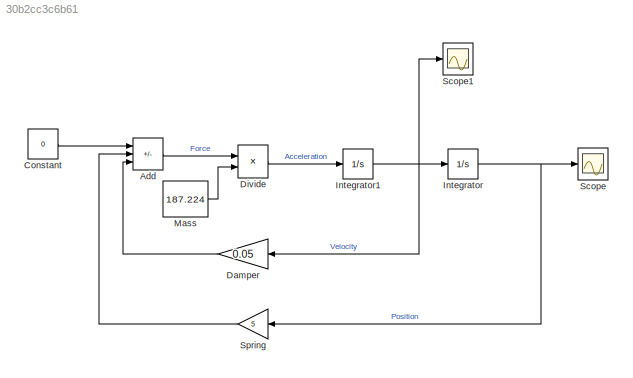
MODEL slx_30b2cc3c6b61
KIND model
CONFIG AbsTol = auto
CONFIG EnableMultiTasking = off
CONFIG FixedStep = auto
CONFIG MaxStep = auto
CONFIG MinStep = auto
CONFIG RelTol = 1e-3
CONFIG SampleTimeConstraint = Unconstrained
CONFIG SolverName = VariableStepAuto
CONFIG StartTime = 0.0
CONFIG StopTime = 100
BLOCK [Sum] Add
  IconShape = rectangular
  Inputs = +--
BLOCK [Constant] Constant
  Value = 0
BLOCK [Gain] Damper
  Gain = 0.05
  NameLocation = top
BLOCK [Product] Divide
  Inputs = */
  RndMeth = Zero
  SaturateOnIntegerOverflow = on
BLOCK [Integrator] Integrator
  InitialCondition = 0.4
BLOCK [Integrator] Integrator1
BLOCK [Constant] Mass
  Value = 187.224
BLOCK [Scope] Scope
  Floating = off
  NumInputPorts = 1
  ScopeSpecificationString = Simulink.scopes.TimeScopeBlockCfg('CurrentConfiguration', extmgr.ConfigurationSet(extmgr.Configuration('Core','General UI',true),extmgr.Configuration('Core','Source UI',true),extmgr.Configuration('Sources','WiredSimulink',true),extmgr.Configuration('Visuals','Time Domain',true,'SerializedDisplays',{struct('MinYLimReal','177.17093','MaxYLimReal','197.8621','YLabelReal','','MinYLimMag','177.17093','...<+1386ch>
BLOCK [Scope] Scope1
  Floating = off
  NumInputPorts = 1
  ScopeSpecificationString = Simulink.scopes.TimeScopeBlockCfg('CurrentConfiguration', extmgr.ConfigurationSet(extmgr.Configuration('Core','General UI',true),extmgr.Configuration('Core','Source UI',true),extmgr.Configuration('Sources','WiredSimulink',true,'DataLoggingVariableName','ScopeData1'),extmgr.Configuration('Visuals','Time Domain',true),extmgr.Configuration('Tools','Plot Navigation',true),extmgr.Configuration('Tools',...<+40ch>
BLOCK [Gain] Spring
  Gain = 5
  NameLocation = top
LINE Add:1 -> Divide:1
LINE Constant:1 -> Add:1
LINE Damper:1 -> Add:3
LINE Divide:1 -> Integrator1:1
NET Integrator1:1 -> Damper:1, Integrator:1, Scope1:1
NET Integrator:1 -> Scope:1, Spring:1
LINE Mass:1 -> Divide:2
LINE Spring:1 -> Add:2
note: NET lines group one-source signal fan-out (src -> all destinations, sorted); 1:1 wires keep LINE
